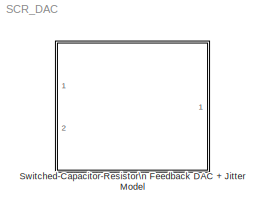
MODEL SCR_DAC
KIND model
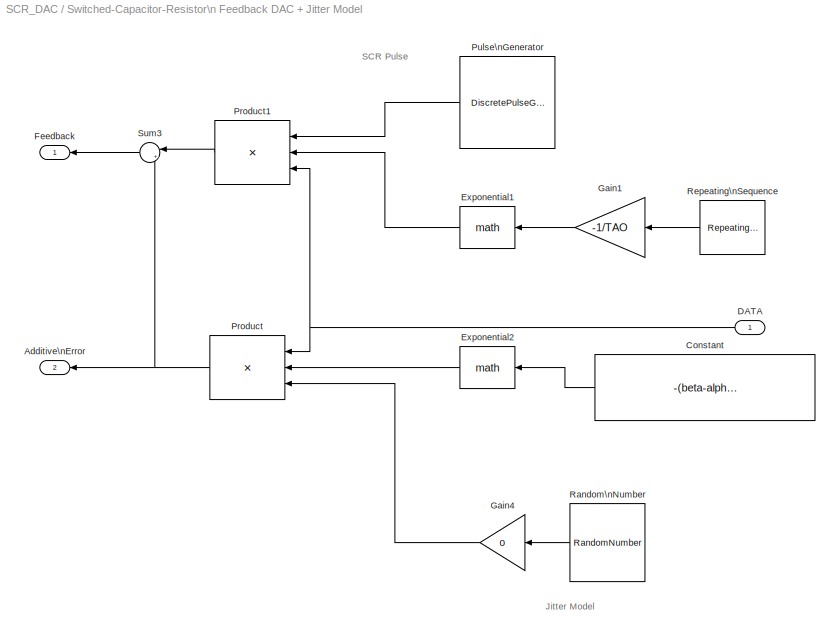
BLOCK [SubSystem] Switched-Capacitor-Resistor\n Feedback DAC + Jitter Model
  FunctionWithSeparateData = off
  MaskHideContents = off
  MinAlgLoopOccurrences = off
  Opaque = off
  Ports = [1, 2]
  PropExecContextOutsideSubsystem = off
  RTWSystemCode = Auto
  RequestExecContextInheritance = off
  SID = 502
BLOCK [Outport] Switched-Capacitor-Resistor\n Feedback DAC + Jitter Model/Additive\nError
  IconDisplay = Port number
  Port = 2
  SID = 506
BLOCK [Constant] Switched-Capacitor-Resistor\n Feedback DAC + Jitter Model/Constant
  SID = 515
  Value = -(beta-alpha)/TAO
BLOCK [Inport] Switched-Capacitor-Resistor\n Feedback DAC + Jitter Model/DATA
  IconDisplay = Port number
  SID = 504
BLOCK [Math] Switched-Capacitor-Resistor\n Feedback DAC + Jitter Model/Exponential1
  Ports = [1, 1]
  SID = 512
  SampleTime = 1/Fs
BLOCK [Math] Switched-Capacitor-Resistor\n Feedback DAC + Jitter Model/Exponential2
  Ports = [1, 1]
  SID = 514
  SampleTime = 1/Fs
BLOCK [Outport] Switched-Capacitor-Resistor\n Feedback DAC + Jitter Model/Feedback
  IconDisplay = Port number
  SID = 503
BLOCK [Gain] Switched-Capacitor-Resistor\n Feedback DAC + Jitter Model/Gain1
  Gain = -1/TAO
  OutDataTypeStr = Inherit: Inherit via internal rule
  ParamDataTypeStr = Inherit: Inherit via internal rule
  SID = 510
  SampleTime = 1/Fs
  SaturateOnIntegerOverflow = off
BLOCK [Gain] Switched-Capacitor-Resistor\n Feedback DAC + Jitter Model/Gain4
  Gain = 0
  OutDataTypeStr = Inherit: Inherit via internal rule
  ParamDataTypeStr = Inherit: Inherit via internal rule
  SID = 458
  SampleTime = 1/Fs
  SaturateOnIntegerOverflow = off
BLOCK [Product] Switched-Capacitor-Resistor\n Feedback DAC + Jitter Model/Product
  InputSameDT = off
  Inputs = 3
  OutDataTypeStr = Inherit: Inherit via internal rule
  Ports = [3, 1]
  SID = 491
  SampleTime = 1/Fs
  SaturateOnIntegerOverflow = off
BLOCK [Product] Switched-Capacitor-Resistor\n Feedback DAC + Jitter Model/Product1
  InputSameDT = off
  Inputs = 3
  OutDataTypeStr = Inherit: Inherit via internal rule
  Ports = [3, 1]
  SID = 496
  SampleTime = 1/Fs
  SaturateOnIntegerOverflow = off
BLOCK [DiscretePulseGenerator] Switched-Capacitor-Resistor\n Feedback DAC + Jitter Model/Pulse\nGenerator
  Amplitude = 0.5
  Period = 1/Fs
  PhaseDelay = 50
  Ports = [0, 1]
  PulseType = Time based
  PulseWidth = 25
  SID = 495
  SampleTime = 1/Fs
BLOCK [RandomNumber] Switched-Capacitor-Resistor\n Feedback DAC + Jitter Model/Random\nNumber
  Mean = 100e-12
  SID = 492
  SampleTime = 1/Fs
  Seed = 1
  Variance = 50e-9
BLOCK [Reference] Switched-Capacitor-Resistor\n Feedback DAC + Jitter Model/Repeating\nSequence  REF=simulink/Sources/Repeating\nSequence
  Ports = [0, 1]
  SID = 513
  SourceBlock = simulink/Sources/Repeating\nSequence
  SourceType = Repeating table
  rep_seq_t = [0 1]
  rep_seq_y = [0 1]
BLOCK [Sum] Switched-Capacitor-Resistor\n Feedback DAC + Jitter Model/Sum3
  IconShape = round
  InputSameDT = off
  Inputs = |++
  OutDataTypeStr = Inherit: Inherit via internal rule
  Ports = [2, 1]
  SID = 451
  SampleTime = 1/Fs
  SaturateOnIntegerOverflow = off
ANNOTATION Switched-Capacitor-Resistor\n Feedback DAC + Jitter Model: Jitter Model
ANNOTATION Switched-Capacitor-Resistor\n Feedback DAC + Jitter Model: SCR Pulse
LINE Switched-Capacitor-Resistor\n Feedback DAC + Jitter Model/Constant:1 -> Switched-Capacitor-Resistor\n Feedback DAC + Jitter Model/Exponential2:1
NET Switched-Capacitor-Resistor\n Feedback DAC + Jitter Model/DATA:1 -> Switched-Capacitor-Resistor\n Feedback DAC + Jitter Model/Product1:3, Switched-Capacitor-Resistor\n Feedback DAC + Jitter Model/Product:1
LINE Switched-Capacitor-Resistor\n Feedback DAC + Jitter Model/Exponential1:1 -> Switched-Capacitor-Resistor\n Feedback DAC + Jitter Model/Product1:2
LINE Switched-Capacitor-Resistor\n Feedback DAC + Jitter Model/Exponential2:1 -> Switched-Capacitor-Resistor\n Feedback DAC + Jitter Model/Product:2
LINE Switched-Capacitor-Resistor\n Feedback DAC + Jitter Model/Gain1:1 -> Switched-Capacitor-Resistor\n Feedback DAC + Jitter Model/Exponential1:1
LINE Switched-Capacitor-Resistor\n Feedback DAC + Jitter Model/Gain4:1 -> Switched-Capacitor-Resistor\n Feedback DAC + Jitter Model/Product:3
LINE Switched-Capacitor-Resistor\n Feedback DAC + Jitter Model/Product1:1 -> Switched-Capacitor-Resistor\n Feedback DAC + Jitter Model/Sum3:1
NET Switched-Capacitor-Resistor\n Feedback DAC + Jitter Model/Product:1 -> Switched-Capacitor-Resistor\n Feedback DAC + Jitter Model/Additive\nError:1, Switched-Capacitor-Resistor\n Feedback DAC + Jitter Model/Sum3:2
LINE Switched-Capacitor-Resistor\n Feedback DAC + Jitter Model/Pulse\nGenerator:1 -> Switched-Capacitor-Resistor\n Feedback DAC + Jitter Model/Product1:1
LINE Switched-Capacitor-Resistor\n Feedback DAC + Jitter Model/Random\nNumber:1 -> Switched-Capacitor-Resistor\n Feedback DAC + Jitter Model/Gain4:1
LINE Switched-Capacitor-Resistor\n Feedback DAC + Jitter Model/Repeating\nSequence:1 -> Switched-Capacitor-Resistor\n Feedback DAC + Jitter Model/Gain1:1
LINE Switched-Capacitor-Resistor\n Feedback DAC + Jitter Model/Sum3:1 -> Switched-Capacitor-Resistor\n Feedback DAC + Jitter Model/Feedback:1
note: NET lines group one-source signal fan-out (src -> all destinations, sorted); 1:1 wires keep LINE
